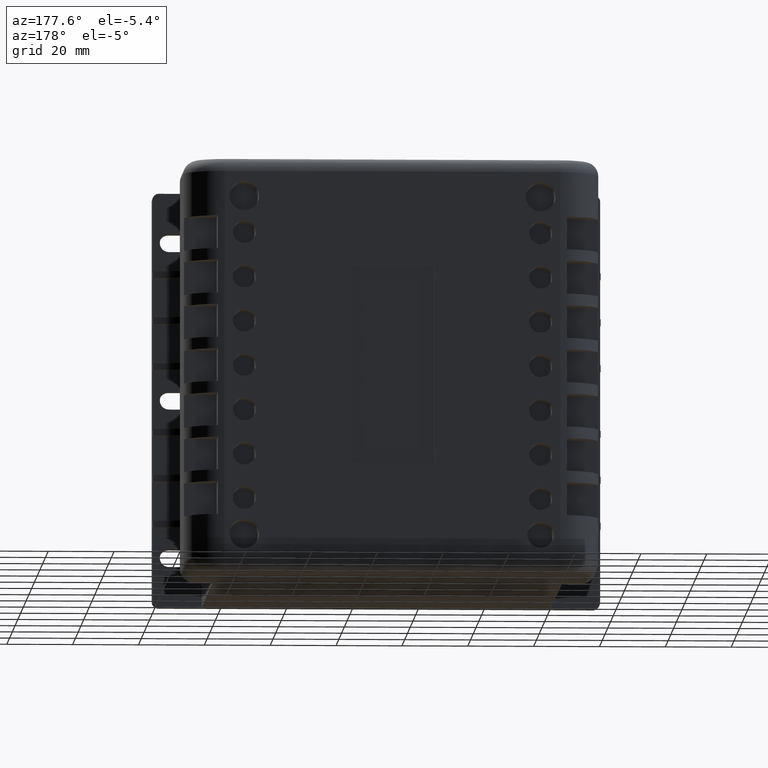
[diagram: clean part render]
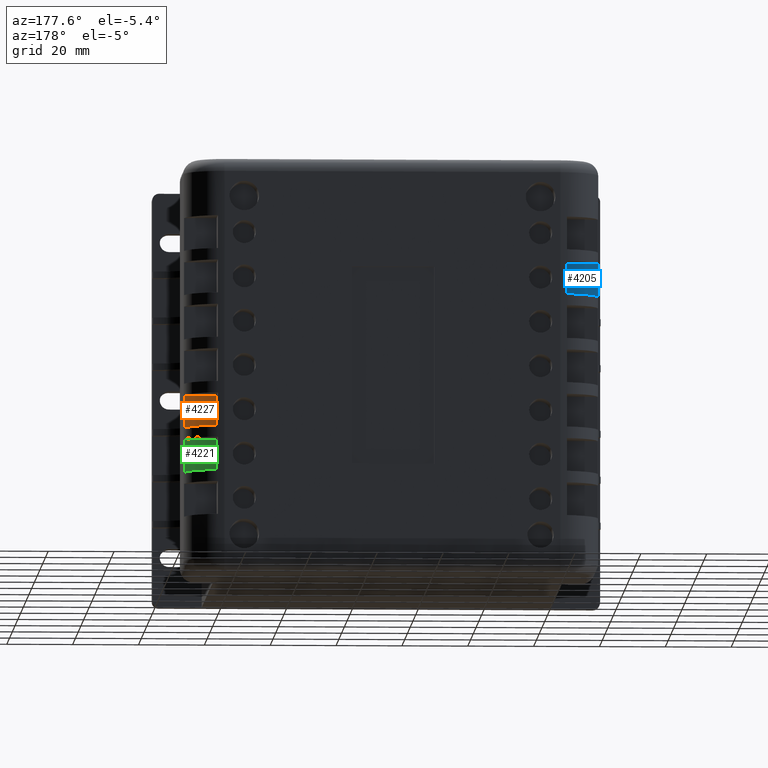
[diagram: same view with three faces highlighted in distinct colors, each labeled with its STEP entity id]
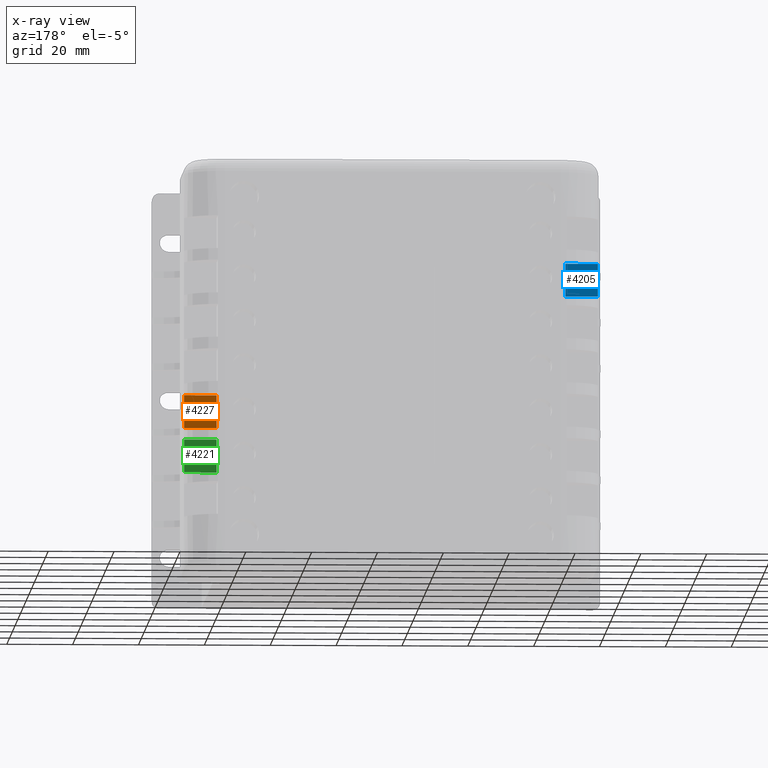
[diagram: x-ray of the same camera — body ghosted, the three highlighted faces saturated]
A machine part, auxiliary view with three faces highlighted in distinct colors.
The next image is the same camera in x-ray (body ghosted, the three faces saturated) — at least one of them is partly hidden behind the body in this view.
Their STEP definitions:

[orange] entity #4227 — the highlighted planar face has unit normal (0, -1, 0).
#514=FACE_OUTER_BOUND('',#806,.T.);
#806=EDGE_LOOP('',(#3488,#3489,#3490,#3491));
#1177=LINE('',#6950,#1569);
#1199=LINE('',#7004,#1591);
#1200=LINE('',#7006,#1592);
#1201=LINE('',#7007,#1593);
#1569=VECTOR('',#5802,10.);
#1591=VECTOR('',#5852,10.);
#1592=VECTOR('',#5853,10.);
#1593=VECTOR('',#5854,10.);
#1937=VERTEX_POINT('',#6947);
#1938=VERTEX_POINT('',#6949);
#1956=VERTEX_POINT('',#7003);
#1957=VERTEX_POINT('',#7005);
#2448=EDGE_CURVE('',#1937,#1938,#1177,.T.);
#2475=EDGE_CURVE('',#1956,#1937,#1199,.T.);
#2476=EDGE_CURVE('',#1957,#1956,#1200,.T.);
#2477=EDGE_CURVE('',#1938,#1957,#1201,.T.);
#3488=ORIENTED_EDGE('',*,*,#2448,.F.);
#3489=ORIENTED_EDGE('',*,*,#2475,.F.);
#3490=ORIENTED_EDGE('',*,*,#2476,.F.);
#3491=ORIENTED_EDGE('',*,*,#2477,.F.);
#3724=PLANE('',#4718);
#4227=ADVANCED_FACE('',(#514),#3724,.F.);
#4718=AXIS2_PLACEMENT_3D('',#7002,#5850,#5851);
#5802=DIRECTION('',(3.41426618094879E-16,0.,1.));
#5850=DIRECTION('center_axis',(0.,-1.,0.));
#5851=DIRECTION('ref_axis',(0.,0.,-1.));
#5852=DIRECTION('',(1.,0.,0.));
#5853=DIRECTION('',(1.11022302462516E-16,0.,-1.));
#5854=DIRECTION('',(-1.,0.,0.));
#6947=CARTESIAN_POINT('',(-0.167840433800749,27.,44.5));
#6949=CARTESIAN_POINT('',(-0.167840433800746,27.,54.5));
#6950=CARTESIAN_POINT('',(-0.167840433800732,27.,94.5));
#7002=CARTESIAN_POINT('Origin',(-4.99999999999999,27.,49.5));
#7003=CARTESIAN_POINT('',(-9.99999999999999,27.,44.5));
#7004=CARTESIAN_POINT('',(1.51934845052221E-14,27.,44.5));
#7005=CARTESIAN_POINT('',(-9.99999999999999,27.,54.5));
#7006=CARTESIAN_POINT('',(-9.99999999999999,27.,44.5));
#7007=CARTESIAN_POINT('',(-9.99999999999999,27.,54.5));

[blue] entity #4205 — the highlighted planar face has unit normal (0, 1, 0).
#492=FACE_OUTER_BOUND('',#777,.T.);
#777=EDGE_LOOP('',(#3382,#3383,#3384,#3385));
#1120=LINE('',#6785,#1512);
#1134=LINE('',#6838,#1526);
#1136=LINE('',#6841,#1528);
#1162=LINE('',#6893,#1554);
#1512=VECTOR('',#5643,10.);
#1526=VECTOR('',#5683,10.);
#1528=VECTOR('',#5687,10.);
#1554=VECTOR('',#5741,10.);
#1878=VERTEX_POINT('',#6778);
#1881=VERTEX_POINT('',#6783);
#1906=VERTEX_POINT('',#6835);
#1907=VERTEX_POINT('',#6837);
#2370=EDGE_CURVE('',#1881,#1878,#1120,.T.);
#2396=EDGE_CURVE('',#1907,#1906,#1134,.T.);
#2398=EDGE_CURVE('',#1906,#1878,#1136,.T.);
#2424=EDGE_CURVE('',#1881,#1907,#1162,.T.);
#3382=ORIENTED_EDGE('',*,*,#2370,.F.);
#3383=ORIENTED_EDGE('',*,*,#2424,.T.);
#3384=ORIENTED_EDGE('',*,*,#2396,.T.);
#3385=ORIENTED_EDGE('',*,*,#2398,.T.);
#3703=PLANE('',#4682);
#4205=ADVANCED_FACE('',(#492),#3703,.T.);
#4682=AXIS2_PLACEMENT_3D('',#6894,#5742,#5743);
#5643=DIRECTION('',(-1.40980701539702E-16,0.,-1.));
#5683=DIRECTION('',(-7.93875538652274E-16,0.,-1.));
#5687=DIRECTION('',(-1.,0.,6.82853236189759E-16));
#5741=DIRECTION('',(1.,0.,-6.82853236189759E-16));
#5742=DIRECTION('center_axis',(0.,1.,0.));
#5743=DIRECTION('ref_axis',(-6.82853236189759E-16,0.,-1.));
#6778=CARTESIAN_POINT('',(-125.832159566199,27.,85.0000000000001));
#6783=CARTESIAN_POINT('',(-125.832159566199,27.,95.0000000000001));
#6785=CARTESIAN_POINT('',(-125.832159566199,27.,31.5));
#6835=CARTESIAN_POINT('',(-116.,27.,85.0000000000001));
#6837=CARTESIAN_POINT('',(-116.,27.,95.0000000000001));
#6838=CARTESIAN_POINT('',(-116.,27.,85.0000000000001));
#6841=CARTESIAN_POINT('',(-126.,27.,85.0000000000001));
#6893=CARTESIAN_POINT('',(-116.,27.,95.0000000000001));
#6894=CARTESIAN_POINT('Origin',(-121.,27.,90.0000000000001));

[green] entity #4221 — the highlighted planar face has unit normal (0, -1, 0).
#508=FACE_OUTER_BOUND('',#800,.T.);
#800=EDGE_LOOP('',(#3467,#3468,#3469,#3470));
#1171=LINE('',#6926,#1563);
#1187=LINE('',#6980,#1579);
#1188=LINE('',#6982,#1580);
#1189=LINE('',#6983,#1581);
#1563=VECTOR('',#5784,10.);
#1579=VECTOR('',#5828,10.);
#1580=VECTOR('',#5829,10.);
#1581=VECTOR('',#5830,10.);
#1925=VERTEX_POINT('',#6923);
#1926=VERTEX_POINT('',#6925);
#1950=VERTEX_POINT('',#6979);
#1951=VERTEX_POINT('',#6981);
#2436=EDGE_CURVE('',#1925,#1926,#1171,.T.);
#2463=EDGE_CURVE('',#1950,#1925,#1187,.T.);
#2464=EDGE_CURVE('',#1951,#1950,#1188,.T.);
#2465=EDGE_CURVE('',#1926,#1951,#1189,.T.);
#3467=ORIENTED_EDGE('',*,*,#2436,.F.);
#3468=ORIENTED_EDGE('',*,*,#2463,.F.);
#3469=ORIENTED_EDGE('',*,*,#2464,.F.);
#3470=ORIENTED_EDGE('',*,*,#2465,.F.);
#3718=PLANE('',#4712);
#4221=ADVANCED_FACE('',(#508),#3718,.F.);
#4712=AXIS2_PLACEMENT_3D('',#6978,#5826,#5827);
#5784=DIRECTION('',(3.41426618094879E-16,0.,1.));
#5826=DIRECTION('center_axis',(0.,-1.,0.));
#5827=DIRECTION('ref_axis',(0.,0.,-1.));
#5828=DIRECTION('',(1.,0.,0.));
#5829=DIRECTION('',(1.11022302462516E-16,0.,-1.));
#5830=DIRECTION('',(-1.,0.,0.));
#6923=CARTESIAN_POINT('',(-0.167840433800754,27.,31.));
#6925=CARTESIAN_POINT('',(-0.16784043380075,27.,41.));
#6926=CARTESIAN_POINT('',(-0.167840433800732,27.,94.5));
#6978=CARTESIAN_POINT('Origin',(-4.99999999999999,27.,36.));
#6979=CARTESIAN_POINT('',(-9.99999999999999,27.,31.));
#6980=CARTESIAN_POINT('',(1.05842251609413E-14,27.,31.));
#6981=CARTESIAN_POINT('',(-10.,27.,41.));
#6982=CARTESIAN_POINT('',(-9.99999999999999,27.,31.));
#6983=CARTESIAN_POINT('',(-10.,27.,41.));